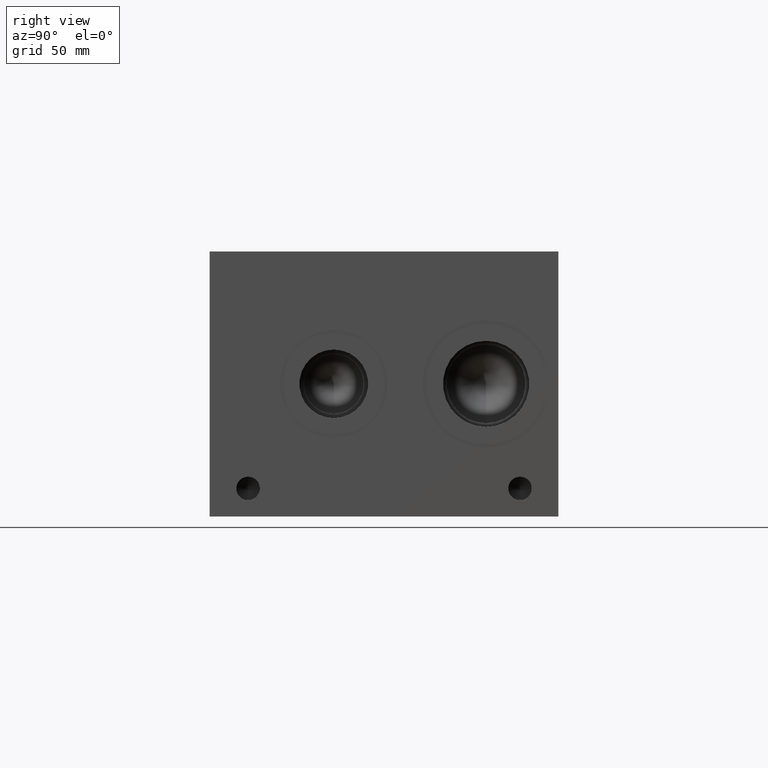
[diagram: clean part render]
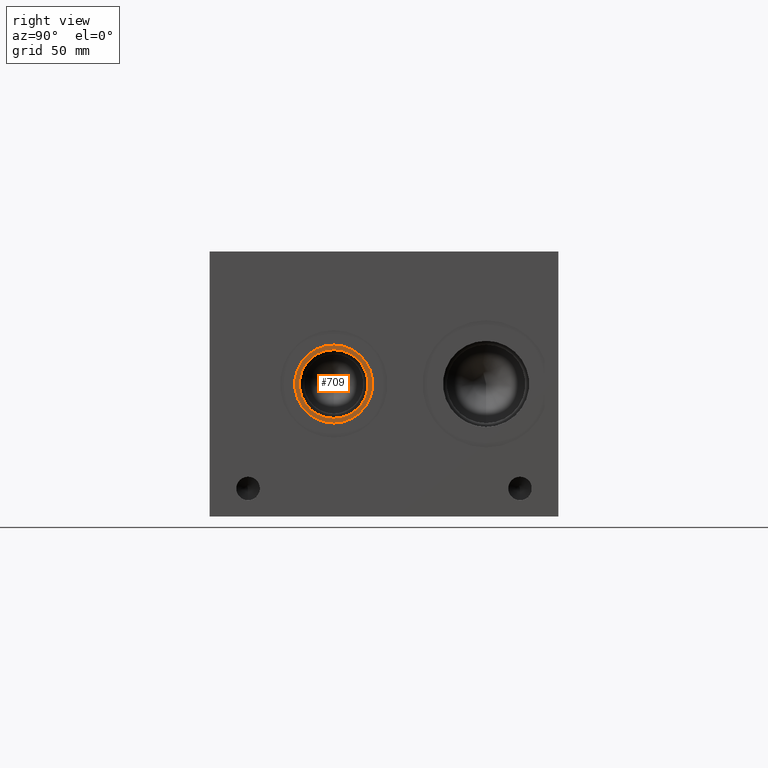
[diagram: same view with one face highlighted and labeled with its STEP entity id]
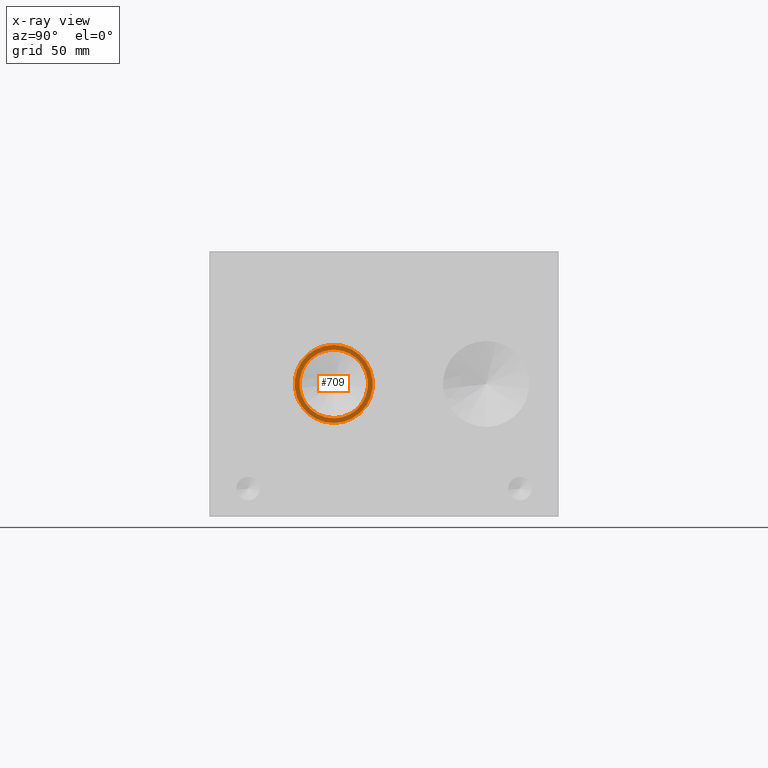
[diagram: x-ray of the same camera — body ghosted, the highlighted face saturated]
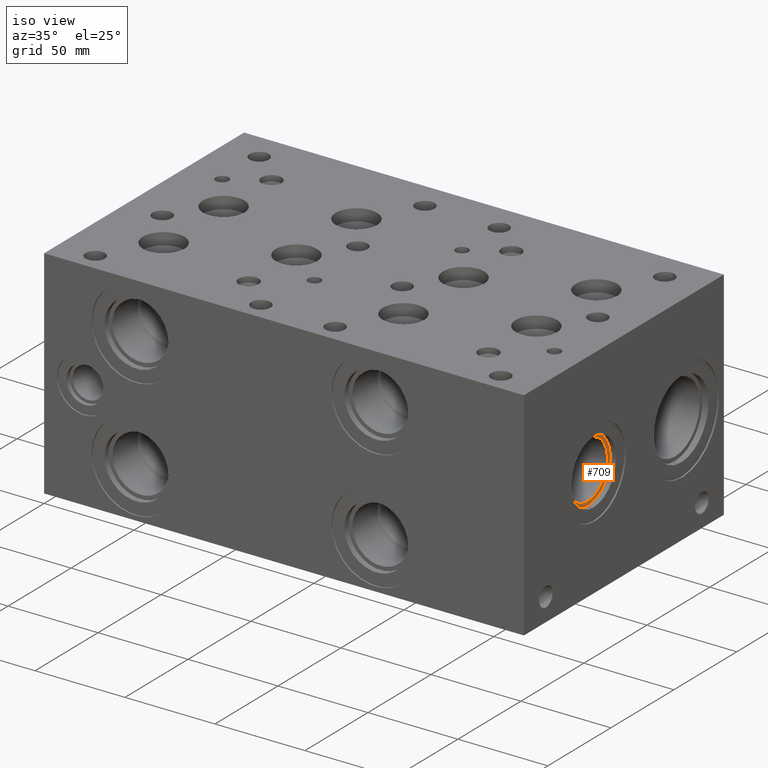
[diagram: same view with one face highlighted and labeled with its STEP entity id]
A machine part, right view. The second image highlights one B-rep face of the part: STEP entity #709.
The next image is the same camera in x-ray: the body ghosted, the highlighted face saturated — about 0% of this face is hidden behind the body in this view.
A second angle (iso view) of the same face is appended — the face is thin or edge-on in the first view.
In plain terms, the highlighted planar face has unit normal (-1, 0, 0).
Its self-contained STEP definition (entity closure, byte-faithful):
#675=CARTESIAN_POINT('',(262.63600000000002,56.48960000000001,44.691300000000005));
#676=VERTEX_POINT('',#675);
#677=CARTESIAN_POINT('',(262.63600000000002,56.48960000000001,60.325000000000003));
#678=DIRECTION('',(1.0,0.0,0.0));
#679=DIRECTION('',(0.0,0.0,-1.0));
#680=AXIS2_PLACEMENT_3D('',#677,#678,#679);
#681=CIRCLE('',#680,15.633699999999999);
#682=EDGE_CURVE('',#676,#676,#681,.T.);
#690=CARTESIAN_POINT('',(262.63600000000002,56.48960000000001,43.630850000000009));
#691=DIRECTION('',(-1.0,0.0,0.0));
#692=DIRECTION('',(0.0,0.0,1.0));
#693=AXIS2_PLACEMENT_3D('',#690,#691,#692);
#694=PLANE('',#693);
#695=CARTESIAN_POINT('',(262.63600000000002,56.48960000000001,42.570400000000006));
#696=VERTEX_POINT('',#695);
#697=CARTESIAN_POINT('',(262.63600000000002,56.48960000000001,60.325000000000003));
#698=DIRECTION('',(1.0,0.0,0.0));
#699=DIRECTION('',(0.0,0.0,-1.0));
#700=AXIS2_PLACEMENT_3D('',#697,#698,#699);
#701=CIRCLE('',#700,17.754599999999996);
#702=EDGE_CURVE('',#696,#696,#701,.T.);
#703=ORIENTED_EDGE('',*,*,#702,.T.);
#704=EDGE_LOOP('',(#703));
#705=FACE_OUTER_BOUND('',#704,.T.);
#706=ORIENTED_EDGE('',*,*,#682,.F.);
#707=EDGE_LOOP('',(#706));
#708=FACE_BOUND('',#707,.T.);
#709=ADVANCED_FACE('',(#705,#708),#694,.F.);